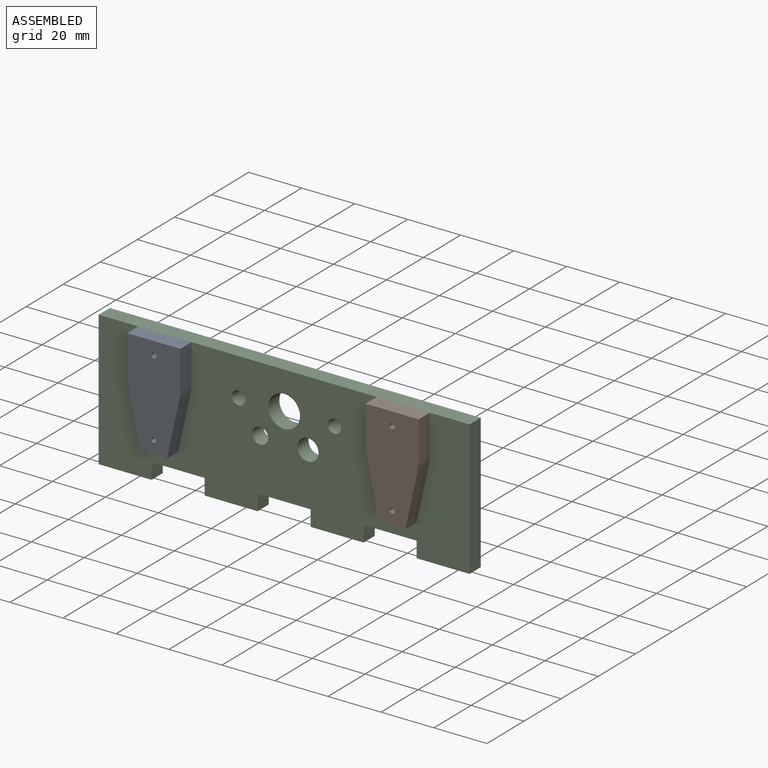
[diagram: assembled view]
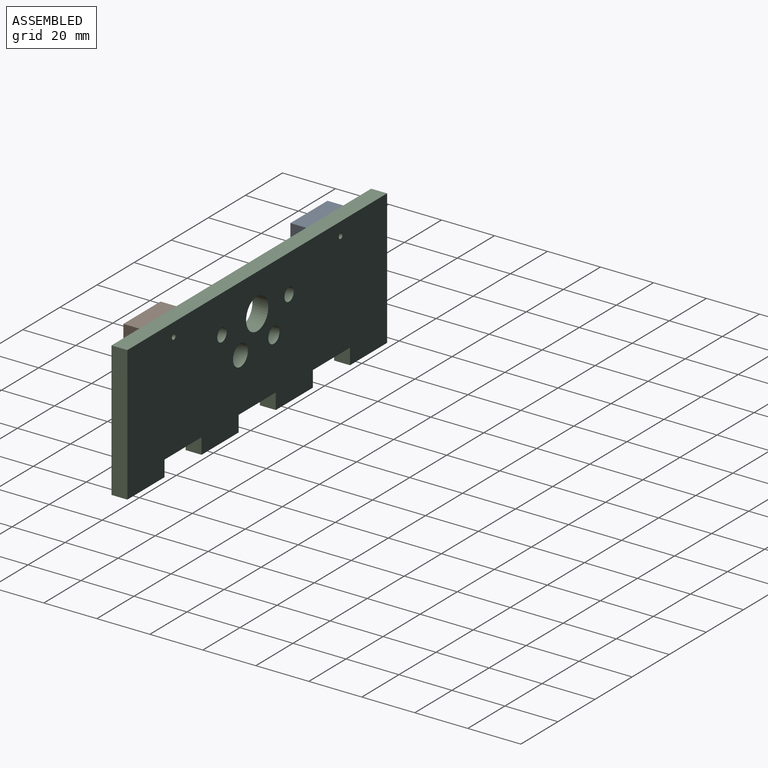
[diagram: assembled view, second angle]
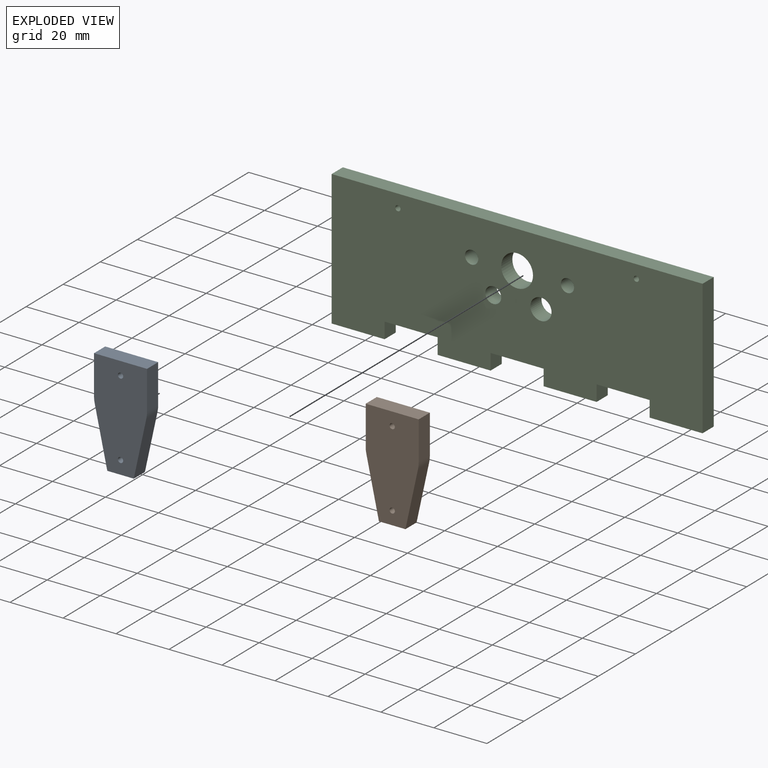
[diagram: exploded view]
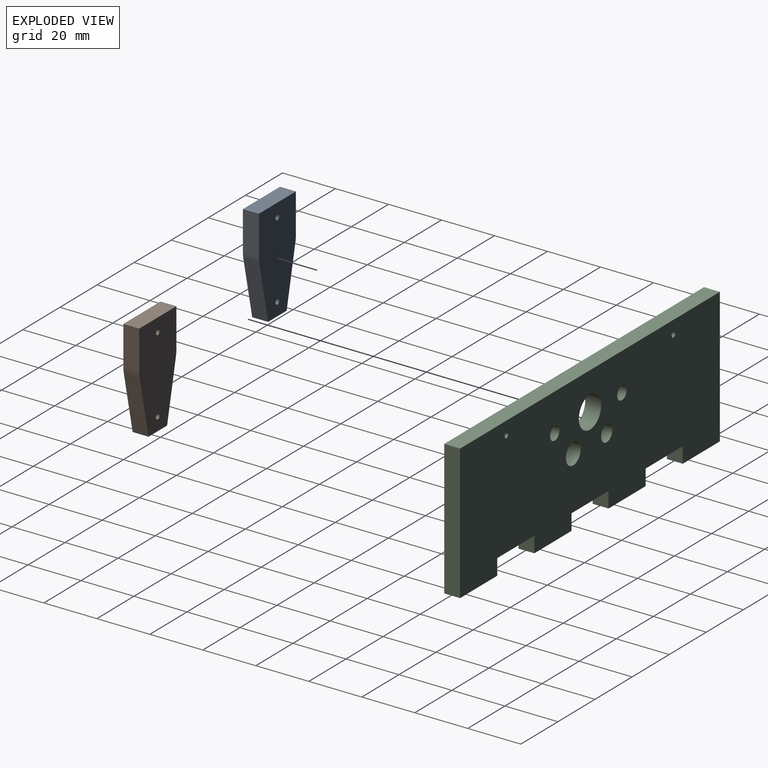
[diagram: exploded view, second angle]
ASSEMBLY  parts=3 mates=2
PART A: 12 faces, bbox 20x6x38.8 mm
  f0: cylinder r=10mm len=6mm, axis (0,1,0), area 12.9mm2, adj f1,f8,f10,f11
  f1: plane 14.8x6mm, normal (1,0,0), area 88.8mm2, adj f0,f2,f10,f11
  f2: plane 20x6mm, normal (0,0,1), area 120mm2, adj f1,f3,f10,f11
  f3: plane 14.8x6mm, normal (-1,0,0), area 88.8mm2, adj f2,f4,f10,f11
  f4: cylinder r=10mm len=6mm, axis (0,1,0), area 12.9mm2, adj f3,f5,f10,f11
  f5: plane 21.86x6mm, normal (-0.98,0,-0.21), area 134.2mm2, adj f4,f6,f10,f11
  f6: plane 10x6mm, normal (0,0,-1), area 60mm2, adj f5,f8,f10,f11
  f7: cylinder r=1mm len=6mm, axis (0,1,0), area 37.7mm2, adj f10,f11
  f8: plane 21.86x6mm, normal (0.98,0,-0.21), area 134.2mm2, adj f0,f6,f10,f11
  f9: cylinder r=1mm len=6mm, axis (0,1,0), area 37.7mm2, adj f10,f11
  f10: plane 38.79x20mm, normal (0,-1,0), area 654.9mm2, adj f0,f1,f2,f3,f4,f5,f6,f7
  f11: plane 38.79x20mm, normal (0,1,0), area 654.9mm2, adj f0,f1,f2,f3,f4,f5,f6,f7
PART B: same geometry as A
PART C: 26 faces, bbox 140x6x51 mm
  f0: plane 140x38.79mm, normal (0,-1,0), area 2672.9mm2, adj f1,f3,f17,f18,f20,f21,f22,f24
  f1: plane 140x35.45mm, normal (0,-1,0), area 3869.9mm2, adj f0,f3,f4,f5,f6,f7,f8,f9
  f2: plane 140x51mm, normal (0,1,0), area 6542.8mm2, adj f3,f4,f5,f6,f7,f8,f9,f10
  f3: plane 51x6mm, normal (-1,0,0), area 306mm2, adj f0,f1,f2,f4,f18
  f4: plane 20x6mm, normal (0,0,-1), area 120mm2, adj f1,f2,f3,f5
  f5: plane 6x6mm, normal (1,0,0), area 36mm2, adj f1,f2,f4,f6
  f6: plane 20x6mm, normal (0,0,-1), area 120mm2, adj f1,f2,f5,f7
  f7: plane 6x6mm, normal (-1,0,0), area 36mm2, adj f1,f2,f6,f8
  f8: plane 20x6mm, normal (0,0,-1), area 120mm2, adj f1,f2,f7,f9
  f9: plane 6x6mm, normal (1,0,0), area 36mm2, adj f1,f2,f8,f10
  f10: plane 20x6mm, normal (0,0,-1), area 120mm2, adj f1,f2,f9,f11
  f11: plane 6x6mm, normal (-1,0,0), area 36mm2, adj f1,f2,f10,f12
  f12: plane 20x6mm, normal (0,0,-1), area 120mm2, adj f1,f2,f11,f13
  f13: plane 6x6mm, normal (1,0,0), area 36mm2, adj f1,f2,f12,f14
  f14: plane 20x6mm, normal (0,0,-1), area 120mm2, adj f1,f2,f13,f15
  f15: plane 6x6mm, normal (-1,0,0), area 36mm2, adj f1,f2,f14,f16
  f16: plane 20x6mm, normal (0,0,-1), area 120mm2, adj f1,f2,f15,f17
  f17: plane 51x6mm, normal (1,0,0), area 306mm2, adj f0,f1,f2,f16,f18
  f18: plane 140x6mm, normal (0,0,1), area 840mm2, adj f0,f2,f3,f17
  f19: cylinder r=3mm len=6mm, axis (0,-1,0), area 113.1mm2, adj f1,f2
  f20: cylinder r=2.5mm len=6mm, axis (0,-1,0), area 94.2mm2, adj f0,f2
  f21: cylinder r=2.5mm len=6mm, axis (0,-1,0), area 94.2mm2, adj f0,f2
  f22: cylinder r=6mm len=12mm, axis (0,-1,0), area 226.2mm2, adj f0,f2
  f23: cylinder r=4mm len=8mm, axis (0,-1,0), area 150.8mm2, adj f1,f2
  f24: cylinder r=1mm len=6mm, axis (0,-1,0), area 37.7mm2, adj f0,f2
  f25: cylinder r=1mm len=6mm, axis (0,-1,0), area 37.7mm2, adj f0,f2
PLACE A t=(-262.77,-39.44,12.27)mm
PLACE B t=(-172.77,-39.44,12.27)mm
PLACE C t=(-262.77,-39.44,12.27)mm
MATE fastened C.f24 <-> A.f9  axis (0,-1,0) through (-307.77,-145.44,58.27)mm
MATE fastened B.f9 <-> C.f25  axis (0,1,0) through (-217.77,-145.44,58.27)mm
